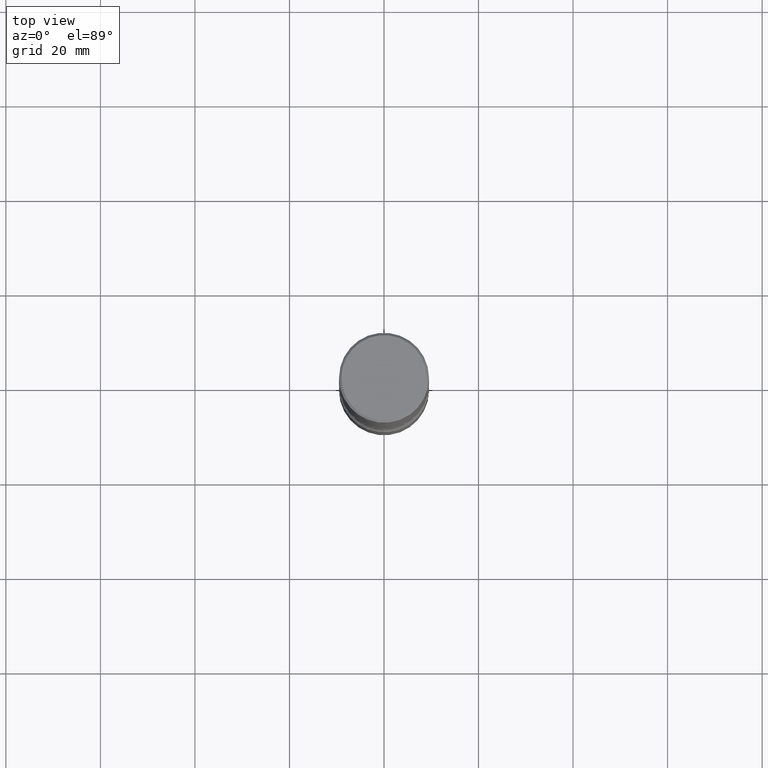
[diagram: clean part render]
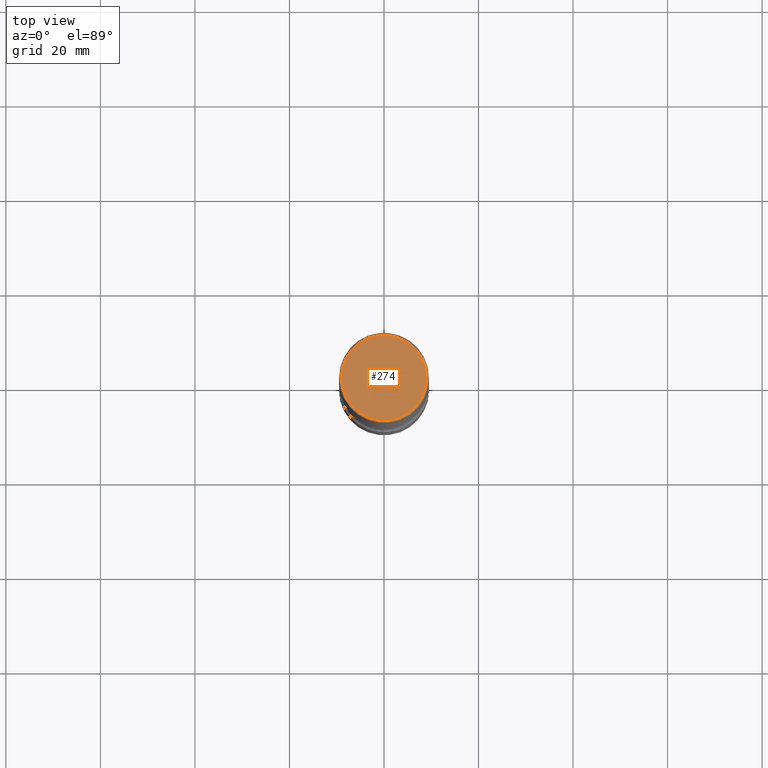
[diagram: same view with one face highlighted and labeled with its STEP entity id]
A machine part, top view. The second image highlights one B-rep face of the part: STEP entity #274.
In plain terms, the highlighted planar face has unit normal (0, -0, -1).
Its self-contained STEP definition (entity closure, byte-faithful):
#15 = VERTEX_POINT ( 'NONE', #460 ) ;
#72 = CARTESIAN_POINT ( 'NONE',  ( -0.3550000000000000377, 2.513866563967055858E-15, 4.268512490082953109E-18 ) ) ;
#99 = ORIENTED_EDGE ( 'NONE', *, *, #109, .T. ) ;
#109 = EDGE_CURVE ( 'NONE', #287, #15, #424, .T. ) ;
#118 = CARTESIAN_POINT ( 'NONE',  ( -1.043851414335219820E-46, 1.490343170380447200E-32, 4.268512490100411279E-18 ) ) ;
#127 = DIRECTION ( 'NONE',  ( -2.445468806185136597E-29, 3.491481338843145583E-15, 1.000000000000000000 ) ) ;
#139 = ORIENTED_EDGE ( 'NONE', *, *, #256, .T. ) ;
#182 = CARTESIAN_POINT ( 'NONE',  ( 2.478951750578624998E-15, 0.3550000000000000377, -1.237341619044266624E-15 ) ) ;
#202 = DIRECTION ( 'NONE',  ( 1.000000000000000000, -6.982962677686266711E-15, 4.876231632511987623E-29 ) ) ;
#241 = CIRCLE ( 'NONE', #537, 0.3550000000000000377 ) ;
#256 = EDGE_CURVE ( 'NONE', #15, #287, #241, .T. ) ;
#274 = ADVANCED_FACE ( 'NONE', ( #506 ), #397, .F. ) ;
#287 = VERTEX_POINT ( 'NONE', #72 ) ;
#294 = DIRECTION ( 'NONE',  ( 1.000000000000000000, -6.982962677686266711E-15, 4.876231632511987623E-29 ) ) ;
#321 = DIRECTION ( 'NONE',  ( -2.445468806185136597E-29, 3.491481338843145583E-15, 1.000000000000000000 ) ) ;
#356 = DIRECTION ( 'NONE',  ( 2.438088387897960049E-29, -3.491481338843145188E-15, -1.000000000000000000 ) ) ;
#384 = CARTESIAN_POINT ( 'NONE',  ( -1.043851414335219820E-46, 1.490343170380447200E-32, 4.268512490100411279E-18 ) ) ;
#393 = AXIS2_PLACEMENT_3D ( 'NONE', #118, #321, #202 ) ;
#397 = PLANE ( 'NONE',  #435 ) ;
#422 = EDGE_LOOP ( 'NONE', ( #99, #139 ) ) ;
#424 = CIRCLE ( 'NONE', #393, 0.3550000000000000377 ) ;
#435 = AXIS2_PLACEMENT_3D ( 'NONE', #182, #356, #523 ) ;
#460 = CARTESIAN_POINT ( 'NONE',  ( 0.3550000000000000377, -2.538996582575041048E-15, 4.268512490117958041E-18 ) ) ;
#506 = FACE_OUTER_BOUND ( 'NONE', #422, .T. ) ;
#523 = DIRECTION ( 'NONE',  ( -1.000000000000000000, 6.982962677686265922E-15, -4.876176775795935793E-29 ) ) ;
#537 = AXIS2_PLACEMENT_3D ( 'NONE', #384, #127, #294 ) ;